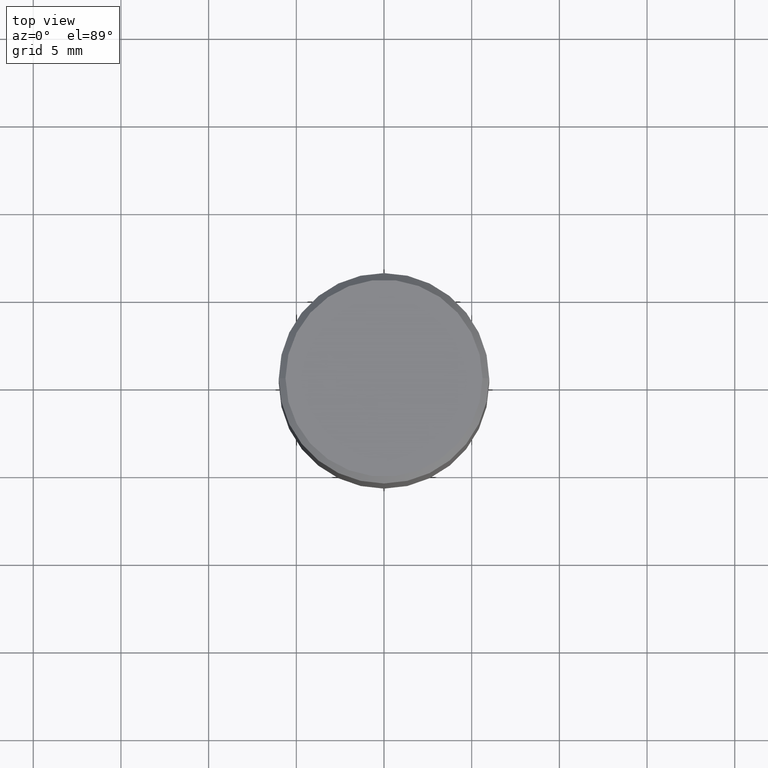
[diagram: clean part render]
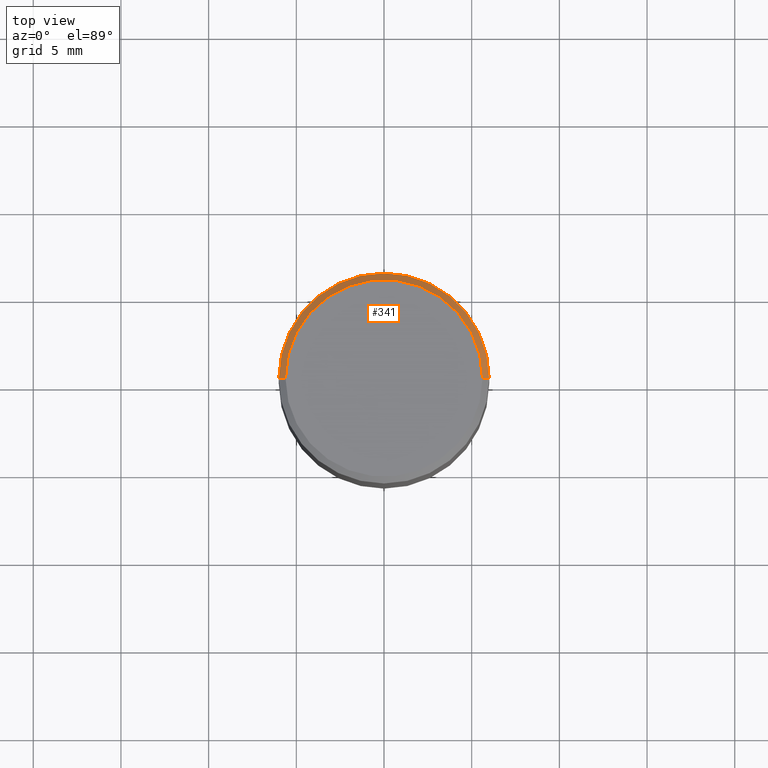
[diagram: same view with one face highlighted and labeled with its STEP entity id]
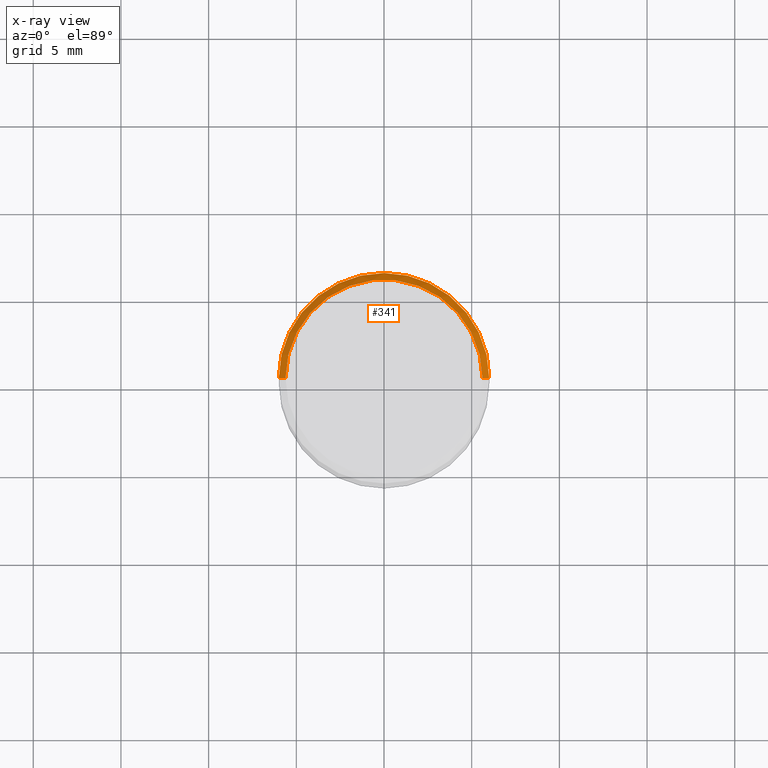
[diagram: x-ray of the same camera — body ghosted, the highlighted face saturated]
A machine part, top view. The second image highlights one B-rep face of the part: STEP entity #341.
The next image is the same camera in x-ray: the body ghosted, the highlighted face saturated — about 0% of this face is hidden behind the body in this view.
In plain terms, the highlighted conical surface has half-angle 45 deg.
Its self-contained STEP definition (entity closure, byte-faithful):
#5 = VERTEX_POINT ( 'NONE', #408 ) ;
#11 = CARTESIAN_POINT ( 'NONE',  ( 0.2212000000000000077, -1.595182002131672613E-15, 4.701447564593453210E-17 ) ) ;
#42 = VERTEX_POINT ( 'NONE', #189 ) ;
#51 = DIRECTION ( 'NONE',  ( -1.000000000000000000, 6.982962677686266711E-15, 0.000000000000000000 ) ) ;
#83 = DIRECTION ( 'NONE',  ( 0.7071067811865459074, -7.319954787623251312E-15, -0.7071067811865492381 ) ) ;
#90 = EDGE_LOOP ( 'NONE', ( #397, #300, #243, #454 ) ) ;
#91 = CARTESIAN_POINT ( 'NONE',  ( 3.668203209277705088E-31, -5.237222008264718399E-17, -0.01499999999999999944 ) ) ;
#94 = VERTEX_POINT ( 'NONE', #138 ) ;
#122 = DIRECTION ( 'NONE',  ( -2.445468806185136597E-29, 3.491481338843145583E-15, 1.000000000000000000 ) ) ;
#124 = DIRECTION ( 'NONE',  ( 2.445468806185136597E-29, -3.491481338843145583E-15, -1.000000000000000000 ) ) ;
#128 = AXIS2_PLACEMENT_3D ( 'NONE', #371, #124, #51 ) ;
#138 = CARTESIAN_POINT ( 'NONE',  ( -0.2212000000000000077, 1.570817454345525709E-15, 4.701447564591265970E-17 ) ) ;
#152 = DIRECTION ( 'NONE',  ( 1.000000000000000000, -6.982962677686266711E-15, 0.000000000000000000 ) ) ;
#156 = FACE_OUTER_BOUND ( 'NONE', #90, .T. ) ;
#159 = LINE ( 'NONE', #455, #370 ) ;
#189 = CARTESIAN_POINT ( 'NONE',  ( -0.2361999999999999933, 4.673423884151294145E-16, -0.01499999999999999944 ) ) ;
#194 = AXIS2_PLACEMENT_3D ( 'NONE', #91, #330, #152 ) ;
#197 = CARTESIAN_POINT ( 'NONE',  ( -0.2361999999999999933, 1.597003564386848854E-15, -0.01499999999999999944 ) ) ;
#199 = AXIS2_PLACEMENT_3D ( 'NONE', #449, #122, #263 ) ;
#202 = LINE ( 'NONE', #197, #352 ) ;
#243 = ORIENTED_EDGE ( 'NONE', *, *, #273, .T. ) ;
#263 = DIRECTION ( 'NONE',  ( 1.000000000000000000, -6.982962677686267499E-15, 4.877828720335458505E-29 ) ) ;
#269 = VERTEX_POINT ( 'NONE', #11 ) ;
#273 = EDGE_CURVE ( 'NONE', #5, #42, #304, .T. ) ;
#287 = CONICAL_SURFACE ( 'NONE', #128, 0.2361999999999999933, 0.7853981633974459475 ) ;
#300 = ORIENTED_EDGE ( 'NONE', *, *, #333, .T. ) ;
#304 = CIRCLE ( 'NONE', #194, 0.2361999999999999933 ) ;
#330 = DIRECTION ( 'NONE',  ( -2.445468806185136597E-29, 3.491481338843145583E-15, 1.000000000000000000 ) ) ;
#333 = EDGE_CURVE ( 'NONE', #269, #5, #159, .T. ) ;
#341 = ADVANCED_FACE ( 'NONE', ( #156 ), #287, .T. ) ;
#345 = EDGE_CURVE ( 'NONE', #269, #94, #460, .T. ) ;
#352 = VECTOR ( 'NONE', #418, 39.37007874015748143 ) ;
#370 = VECTOR ( 'NONE', #83, 39.37007874015748143 ) ;
#371 = CARTESIAN_POINT ( 'NONE',  ( 3.668203209277705088E-31, -5.237222008264718399E-17, -0.01499999999999999944 ) ) ;
#397 = ORIENTED_EDGE ( 'NONE', *, *, #345, .F. ) ;
#408 = CARTESIAN_POINT ( 'NONE',  ( 0.2361999999999999933, -1.701748004552143407E-15, -0.01499999999999999944 ) ) ;
#418 = DIRECTION ( 'NONE',  ( -0.7071067811865459074, 2.468850131082239706E-15, -0.7071067811865492381 ) ) ;
#425 = EDGE_CURVE ( 'NONE', #94, #42, #202, .T. ) ;
#449 = CARTESIAN_POINT ( 'NONE',  ( -1.149724336312568549E-45, 1.641501643732376111E-31, 4.701447564592355584E-17 ) ) ;
#454 = ORIENTED_EDGE ( 'NONE', *, *, #425, .F. ) ;
#455 = CARTESIAN_POINT ( 'NONE',  ( 0.2361999999999999933, -1.672821847156282947E-15, -0.01499999999999999944 ) ) ;
#460 = CIRCLE ( 'NONE', #199, 0.2212000000000000077 ) ;